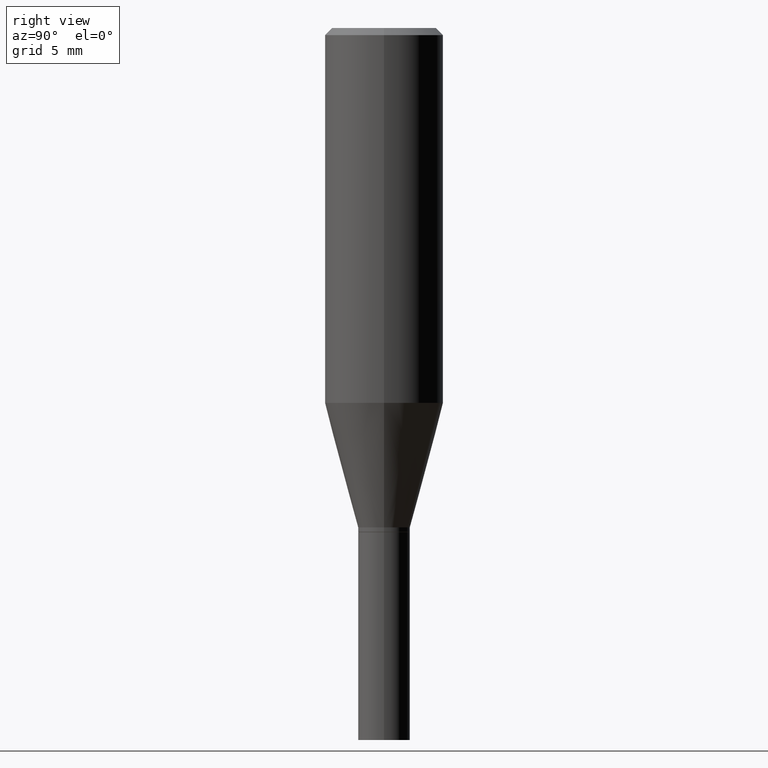
[diagram: clean part render]
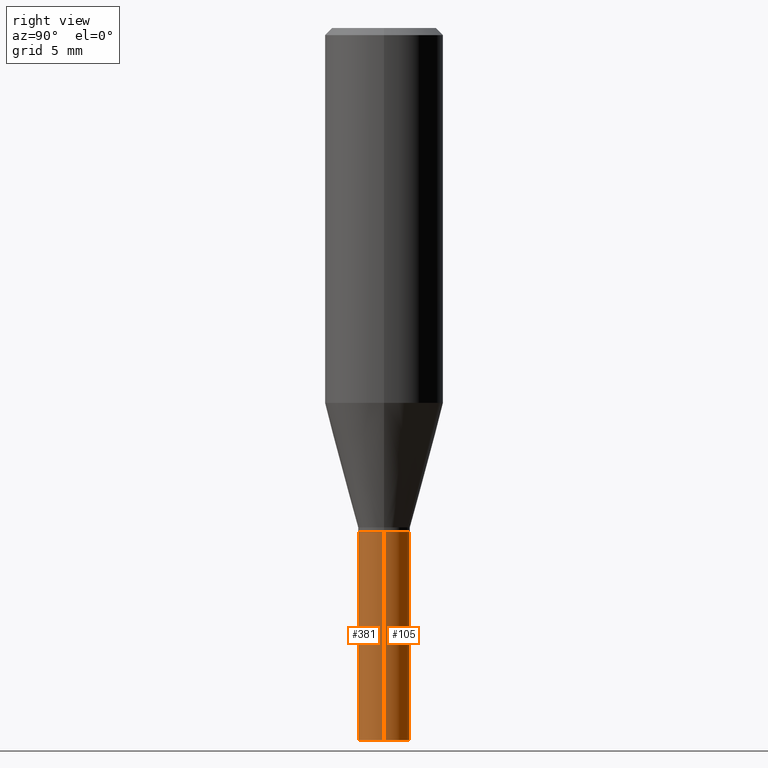
[diagram: same view with one multi-face feature highlighted, each face labeled with its STEP entity id]
A machine part, right view. The highlighted faces form ONE feature: a constant-radius fillet chain: 2 tangent blend faces with common blend radius 1.3894 mm. The faces share edges in the B-rep.
Their STEP definitions:
[1] entity #105 (Cylinder):
#2 = CARTESIAN_POINT ( 'NONE',  ( 3.668203209277704895E-29, -5.237222008264718177E-15, -1.500000000000000222 ) ) ;
#9 = VERTEX_POINT ( 'NONE', #372 ) ;
#26 = LINE ( 'NONE', #99, #449 ) ;
#91 = CARTESIAN_POINT ( 'NONE',  ( 2.597087872168615393E-29, -3.707953181851421097E-15, -1.062000000000000055 ) ) ;
#97 = AXIS2_PLACEMENT_3D ( 'NONE', #98, #345, #310 ) ;
#98 = CARTESIAN_POINT ( 'NONE',  ( 0.000000000000000000, 0.000000000000000000, 0.000000000000000000 ) ) ;
#99 = CARTESIAN_POINT ( 'NONE',  ( -0.05469999999999999862, 3.886668764607747919E-16, -2.690657494369433708E-30 ) ) ;
#101 = CARTESIAN_POINT ( 'NONE',  ( 0.05469999999999999862, -3.819680584694387859E-16, 2.667268696360376954E-30 ) ) ;
#105 = ADVANCED_FACE ( 'NONE', ( #204 ), #138, .T. ) ;
#121 = DIRECTION ( 'NONE',  ( 1.000000000000000000, -6.982962677686269866E-15, 0.000000000000000000 ) ) ;
#125 = CIRCLE ( 'NONE', #231, 0.05469999999999999862 ) ;
#134 = CARTESIAN_POINT ( 'NONE',  ( 0.05469999999999999862, -4.089921240320859489E-15, -1.062000000000000055 ) ) ;
#138 = CYLINDRICAL_SURFACE ( 'NONE', #97, 0.05469999999999999862 ) ;
#157 = DIRECTION ( 'NONE',  ( 1.000000000000000000, -6.982962677686260400E-15, 0.000000000000000000 ) ) ;
#162 = VERTEX_POINT ( 'NONE', #134 ) ;
#180 = ORIENTED_EDGE ( 'NONE', *, *, #443, .F. ) ;
#183 = EDGE_CURVE ( 'NONE', #9, #162, #420, .T. ) ;
#198 = ORIENTED_EDGE ( 'NONE', *, *, #332, .T. ) ;
#204 = FACE_OUTER_BOUND ( 'NONE', #251, .T. ) ;
#216 = CARTESIAN_POINT ( 'NONE',  ( -0.05469999999999999862, -4.083920718597295042E-15, -1.500000000000000222 ) ) ;
#218 = ORIENTED_EDGE ( 'NONE', *, *, #230, .T. ) ;
#230 = EDGE_CURVE ( 'NONE', #368, #253, #26, .T. ) ;
#231 = AXIS2_PLACEMENT_3D ( 'NONE', #91, #234, #121 ) ;
#234 = DIRECTION ( 'NONE',  ( -2.445468806185136597E-29, 3.491481338843145583E-15, 1.000000000000000000 ) ) ;
#237 = AXIS2_PLACEMENT_3D ( 'NONE', #2, #435, #157 ) ;
#241 = DIRECTION ( 'NONE',  ( -2.445468806185136877E-29, 3.491481338843145188E-15, 1.000000000000000000 ) ) ;
#251 = EDGE_LOOP ( 'NONE', ( #198, #218, #180, #299 ) ) ;
#253 = VERTEX_POINT ( 'NONE', #306 ) ;
#299 = ORIENTED_EDGE ( 'NONE', *, *, #183, .F. ) ;
#306 = CARTESIAN_POINT ( 'NONE',  ( -0.05469999999999999862, -4.083920718597295042E-15, -1.062000000000000055 ) ) ;
#310 = DIRECTION ( 'NONE',  ( 1.000000000000000000, -6.982962677686266711E-15, 4.876176775795935793E-29 ) ) ;
#318 = CIRCLE ( 'NONE', #237, 0.05469999999999999862 ) ;
#332 = EDGE_CURVE ( 'NONE', #9, #368, #318, .T. ) ;
#343 = VECTOR ( 'NONE', #348, 39.37007874015748143 ) ;
#345 = DIRECTION ( 'NONE',  ( -2.445468806185136597E-29, 3.491481338843145583E-15, 1.000000000000000000 ) ) ;
#348 = DIRECTION ( 'NONE',  ( -2.445468806185136877E-29, 3.491481338843145188E-15, 1.000000000000000000 ) ) ;
#368 = VERTEX_POINT ( 'NONE', #216 ) ;
#372 = CARTESIAN_POINT ( 'NONE',  ( 0.05469999999999999862, -5.619190066734157357E-15, -1.500000000000000222 ) ) ;
#420 = LINE ( 'NONE', #101, #343 ) ;
#435 = DIRECTION ( 'NONE',  ( -2.445468806185136597E-29, 3.491481338843145583E-15, 1.000000000000000000 ) ) ;
#443 = EDGE_CURVE ( 'NONE', #162, #253, #125, .T. ) ;
#449 = VECTOR ( 'NONE', #241, 39.37007874015748143 ) ;
[2] entity #381 (Cylinder):
#9 = VERTEX_POINT ( 'NONE', #372 ) ;
#24 = ORIENTED_EDGE ( 'NONE', *, *, #183, .T. ) ;
#26 = LINE ( 'NONE', #99, #449 ) ;
#38 = CYLINDRICAL_SURFACE ( 'NONE', #377, 0.05469999999999999862 ) ;
#74 = DIRECTION ( 'NONE',  ( -2.445468806185136597E-29, 3.491481338843145583E-15, 1.000000000000000000 ) ) ;
#86 = FACE_OUTER_BOUND ( 'NONE', #453, .T. ) ;
#88 = ORIENTED_EDGE ( 'NONE', *, *, #353, .F. ) ;
#99 = CARTESIAN_POINT ( 'NONE',  ( -0.05469999999999999862, 3.886668764607747919E-16, -2.690657494369433708E-30 ) ) ;
#101 = CARTESIAN_POINT ( 'NONE',  ( 0.05469999999999999862, -3.819680584694387859E-16, 2.667268696360376954E-30 ) ) ;
#116 = ORIENTED_EDGE ( 'NONE', *, *, #415, .T. ) ;
#120 = CARTESIAN_POINT ( 'NONE',  ( 0.000000000000000000, 0.000000000000000000, 0.000000000000000000 ) ) ;
#134 = CARTESIAN_POINT ( 'NONE',  ( 0.05469999999999999862, -4.089921240320859489E-15, -1.062000000000000055 ) ) ;
#162 = VERTEX_POINT ( 'NONE', #134 ) ;
#163 = AXIS2_PLACEMENT_3D ( 'NONE', #217, #74, #289 ) ;
#183 = EDGE_CURVE ( 'NONE', #9, #162, #420, .T. ) ;
#197 = CARTESIAN_POINT ( 'NONE',  ( 3.668203209277704895E-29, -5.237222008264718177E-15, -1.500000000000000222 ) ) ;
#216 = CARTESIAN_POINT ( 'NONE',  ( -0.05469999999999999862, -4.083920718597295042E-15, -1.500000000000000222 ) ) ;
#217 = CARTESIAN_POINT ( 'NONE',  ( 2.597087872168615393E-29, -3.707953181851421097E-15, -1.062000000000000055 ) ) ;
#230 = EDGE_CURVE ( 'NONE', #368, #253, #26, .T. ) ;
#241 = DIRECTION ( 'NONE',  ( -2.445468806185136877E-29, 3.491481338843145188E-15, 1.000000000000000000 ) ) ;
#253 = VERTEX_POINT ( 'NONE', #306 ) ;
#255 = AXIS2_PLACEMENT_3D ( 'NONE', #197, #413, #292 ) ;
#281 = DIRECTION ( 'NONE',  ( -2.445468806185136597E-29, 3.491481338843145583E-15, 1.000000000000000000 ) ) ;
#289 = DIRECTION ( 'NONE',  ( 1.000000000000000000, -6.982962677686269866E-15, 0.000000000000000000 ) ) ;
#292 = DIRECTION ( 'NONE',  ( 1.000000000000000000, -6.982962677686260400E-15, 0.000000000000000000 ) ) ;
#293 = ORIENTED_EDGE ( 'NONE', *, *, #230, .F. ) ;
#306 = CARTESIAN_POINT ( 'NONE',  ( -0.05469999999999999862, -4.083920718597295042E-15, -1.062000000000000055 ) ) ;
#338 = CIRCLE ( 'NONE', #255, 0.05469999999999999862 ) ;
#343 = VECTOR ( 'NONE', #348, 39.37007874015748143 ) ;
#348 = DIRECTION ( 'NONE',  ( -2.445468806185136877E-29, 3.491481338843145188E-15, 1.000000000000000000 ) ) ;
#353 = EDGE_CURVE ( 'NONE', #253, #162, #363, .T. ) ;
#357 = DIRECTION ( 'NONE',  ( 1.000000000000000000, -6.982962677686266711E-15, 4.876176775795935793E-29 ) ) ;
#363 = CIRCLE ( 'NONE', #163, 0.05469999999999999862 ) ;
#368 = VERTEX_POINT ( 'NONE', #216 ) ;
#372 = CARTESIAN_POINT ( 'NONE',  ( 0.05469999999999999862, -5.619190066734157357E-15, -1.500000000000000222 ) ) ;
#377 = AXIS2_PLACEMENT_3D ( 'NONE', #120, #281, #357 ) ;
#381 = ADVANCED_FACE ( 'NONE', ( #86 ), #38, .T. ) ;
#413 = DIRECTION ( 'NONE',  ( -2.445468806185136597E-29, 3.491481338843145583E-15, 1.000000000000000000 ) ) ;
#415 = EDGE_CURVE ( 'NONE', #368, #9, #338, .T. ) ;
#420 = LINE ( 'NONE', #101, #343 ) ;
#449 = VECTOR ( 'NONE', #241, 39.37007874015748143 ) ;
#453 = EDGE_LOOP ( 'NONE', ( #293, #116, #24, #88 ) ) ;